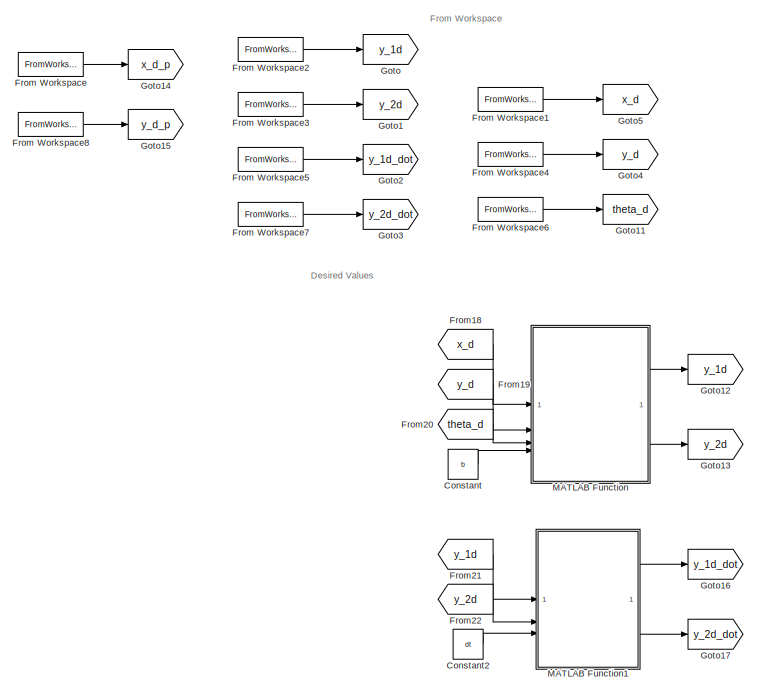
[diagram: root canvas - part 1/3, middle left region]
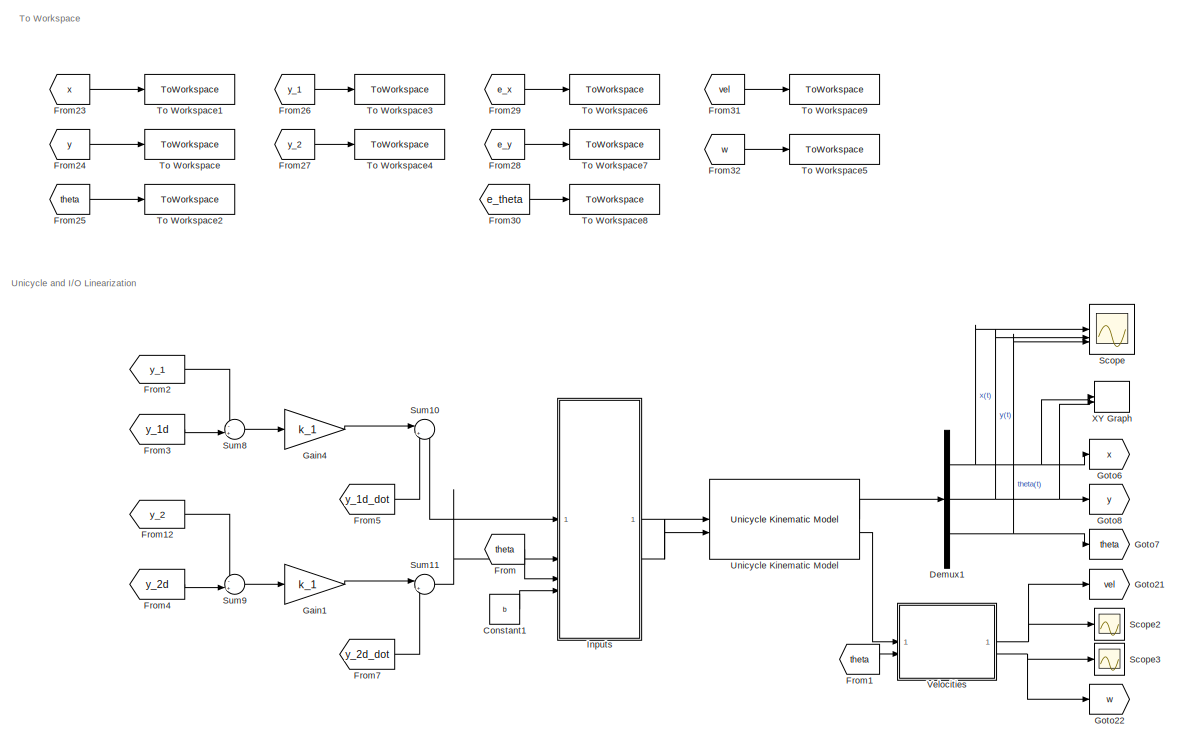
[diagram: root canvas - part 2/3, middle right region]
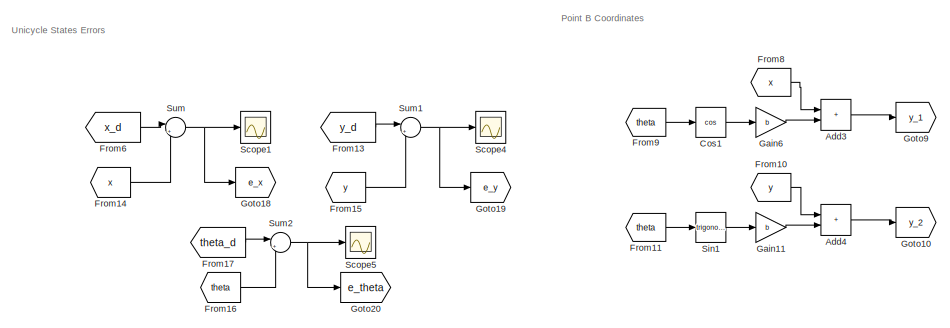
[diagram: root canvas - part 3/3, bottom center region]
MODEL slx_cfa96aeca774
KIND model
CONFIG AbsTol = auto
CONFIG EnableMultiTasking = off
CONFIG FixedStep = 0.001
CONFIG MaxStep = auto
CONFIG MinStep = auto
CONFIG RelTol = 1e-5
CONFIG SampleTimeConstraint = Unconstrained
CONFIG SolverName = ode23
CONFIG StartTime = 0.0
CONFIG StopTime = T+1
BLOCK [Sum] Add3
  IconShape = rectangular
BLOCK [Sum] Add4
  IconShape = rectangular
BLOCK [Constant] Constant
  Value = b
BLOCK [Constant] Constant1
  Value = b
BLOCK [Constant] Constant2
  Value = dt
BLOCK [Trigonometry] Cos1
  Operator = cos
BLOCK [Demux] Demux1
  Outputs = 3
BLOCK [From] From
  GotoTag = theta
BLOCK [FromWorkspace] From Workspace
  Commented = on
  VariableName = x_d_p
BLOCK [FromWorkspace] From Workspace1
  OutputAfterFinalValue = Holding final value
  VariableName = x_d
BLOCK [FromWorkspace] From Workspace2
  Commented = on
  OutputAfterFinalValue = Holding final value
  VariableName = y_1d
BLOCK [FromWorkspace] From Workspace3
  Commented = on
  OutputAfterFinalValue = Holding final value
  VariableName = y_2d
BLOCK [FromWorkspace] From Workspace4
  OutputAfterFinalValue = Holding final value
  VariableName = y_d
BLOCK [FromWorkspace] From Workspace5
  Commented = on
  OutputAfterFinalValue = Holding final value
  VariableName = y_1d_dot
BLOCK [FromWorkspace] From Workspace6
  OutputAfterFinalValue = Holding final value
  VariableName = theta_d
BLOCK [FromWorkspace] From Workspace7
  Commented = on
  OutputAfterFinalValue = Holding final value
  VariableName = y_2d_dot
BLOCK [FromWorkspace] From Workspace8
  Commented = on
  VariableName = y_d_p
BLOCK [From] From1
  GotoTag = theta
BLOCK [From] From10
  GotoTag = y
BLOCK [From] From11
  GotoTag = theta
BLOCK [From] From12
  GotoTag = y_2
BLOCK [From] From13
  GotoTag = y_d
BLOCK [From] From14
  GotoTag = x
BLOCK [From] From15
  GotoTag = y
BLOCK [From] From16
  GotoTag = theta
BLOCK [From] From17
  GotoTag = theta_d
BLOCK [From] From18
  GotoTag = x_d
BLOCK [From] From19
  GotoTag = y_d
BLOCK [From] From2
  GotoTag = y_1
BLOCK [From] From20
  GotoTag = theta_d
BLOCK [From] From21
  GotoTag = y_1d
BLOCK [From] From22
  GotoTag = y_2d
BLOCK [From] From23
  GotoTag = x
BLOCK [From] From24
  GotoTag = y
BLOCK [From] From25
  GotoTag = theta
BLOCK [From] From26
  GotoTag = y_1
BLOCK [From] From27
  GotoTag = y_2
BLOCK [From] From28
  GotoTag = e_y
BLOCK [From] From29
  GotoTag = e_x
BLOCK [From] From3
  GotoTag = y_1d
BLOCK [From] From30
  GotoTag = e_theta
BLOCK [From] From31
  GotoTag = vel
BLOCK [From] From32
  GotoTag = w
BLOCK [From] From4
  GotoTag = y_2d
BLOCK [From] From5
  GotoTag = y_1d_dot
BLOCK [From] From6
  GotoTag = x_d
BLOCK [From] From7
  GotoTag = y_2d_dot
BLOCK [From] From8
  GotoTag = x
BLOCK [From] From9
  GotoTag = theta
BLOCK [Gain] Gain1
  Gain = k_1
BLOCK [Gain] Gain11
  Gain = b
BLOCK [Gain] Gain4
  Gain = k_1
BLOCK [Gain] Gain6
  Gain = b
BLOCK [Goto] Goto
  Commented = on
  GotoTag = y_1d
BLOCK [Goto] Goto1
  Commented = on
  GotoTag = y_2d
BLOCK [Goto] Goto10
  GotoTag = y_2
BLOCK [Goto] Goto11
  GotoTag = theta_d
BLOCK [Goto] Goto12
  GotoTag = y_1d
BLOCK [Goto] Goto13
  GotoTag = y_2d
BLOCK [Goto] Goto14
  Commented = on
  GotoTag = x_d_p
BLOCK [Goto] Goto15
  Commented = on
  GotoTag = y_d_p
BLOCK [Goto] Goto16
  GotoTag = y_1d_dot
BLOCK [Goto] Goto17
  GotoTag = y_2d_dot
BLOCK [Goto] Goto18
  GotoTag = e_x
BLOCK [Goto] Goto19
  GotoTag = e_y
BLOCK [Goto] Goto2
  Commented = on
  GotoTag = y_1d_dot
BLOCK [Goto] Goto20
  GotoTag = e_theta
BLOCK [Goto] Goto21
  GotoTag = vel
BLOCK [Goto] Goto22
  GotoTag = w
BLOCK [Goto] Goto3
  Commented = on
  GotoTag = y_2d_dot
BLOCK [Goto] Goto4
  GotoTag = y_d
BLOCK [Goto] Goto5
  GotoTag = x_d
BLOCK [Goto] Goto6
  GotoTag = x
BLOCK [Goto] Goto7
  GotoTag = theta
BLOCK [Goto] Goto8
  GotoTag = y
BLOCK [Goto] Goto9
  GotoTag = y_1
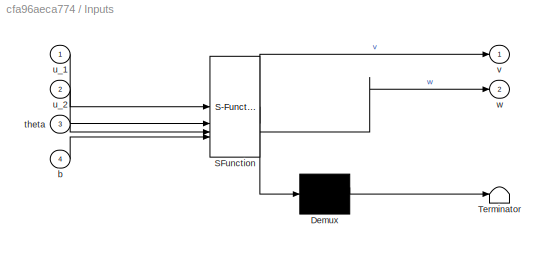
BLOCK [SubSystem] Inputs
  ErrorFcn = Stateflow.Translate.translate
  PermitHierarchicalResolution = ExplicitOnly
  SFBlockType = MATLAB Function
  TreatAsAtomicUnit = on
BLOCK [Demux] Inputs/ Demux 
  Outputs = 1
BLOCK [S-Function] Inputs/ SFunction 
  EnableBusSupport = on
  FunctionName = sf_sfun
  PortCounts = [4 3]
  SFcnIsStateOwnerBlock = off
  SFunctionDeploymentMode = off
  Tag = Stateflow S-Function 1
BLOCK [Terminator] Inputs/ Terminator 
BLOCK [Inport] Inputs/b
  Port = 4
BLOCK [Inport] Inputs/theta
  Port = 3
BLOCK [Inport] Inputs/u_1
BLOCK [Inport] Inputs/u_2
  Port = 2
BLOCK [Outport] Inputs/v
BLOCK [Outport] Inputs/w
  Port = 2
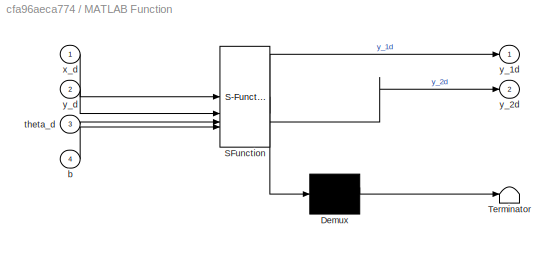
BLOCK [SubSystem] MATLAB Function
  ErrorFcn = Stateflow.Translate.translate
  PermitHierarchicalResolution = ExplicitOnly
  SFBlockType = MATLAB Function
  TreatAsAtomicUnit = on
BLOCK [Demux] MATLAB Function/ Demux 
  Outputs = 1
BLOCK [S-Function] MATLAB Function/ SFunction 
  EnableBusSupport = on
  FunctionName = sf_sfun
  PortCounts = [4 3]
  SFcnIsStateOwnerBlock = off
  SFunctionDeploymentMode = off
  Tag = Stateflow S-Function 3
BLOCK [Terminator] MATLAB Function/ Terminator 
BLOCK [Inport] MATLAB Function/b
  Port = 4
BLOCK [Inport] MATLAB Function/theta_d
  Port = 3
BLOCK [Inport] MATLAB Function/x_d
BLOCK [Outport] MATLAB Function/y_1d
BLOCK [Outport] MATLAB Function/y_2d
  Port = 2
BLOCK [Inport] MATLAB Function/y_d
  Port = 2
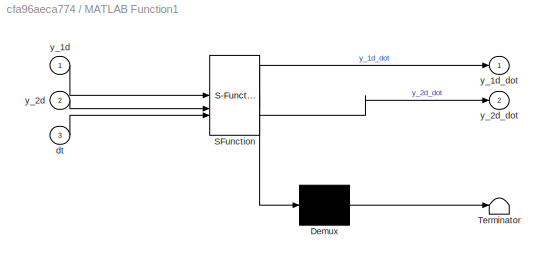
BLOCK [SubSystem] MATLAB Function1
  ErrorFcn = Stateflow.Translate.translate
  PermitHierarchicalResolution = ExplicitOnly
  SFBlockType = MATLAB Function
  TreatAsAtomicUnit = on
BLOCK [Demux] MATLAB Function1/ Demux 
  Outputs = 1
BLOCK [S-Function] MATLAB Function1/ SFunction 
  EnableBusSupport = on
  FunctionName = sf_sfun
  PortCounts = [3 3]
  SFcnIsStateOwnerBlock = off
  SFunctionDeploymentMode = off
  Tag = Stateflow S-Function 4
BLOCK [Terminator] MATLAB Function1/ Terminator 
BLOCK [Inport] MATLAB Function1/dt
  Port = 3
BLOCK [Inport] MATLAB Function1/y_1d
BLOCK [Outport] MATLAB Function1/y_1d_dot
BLOCK [Inport] MATLAB Function1/y_2d
  Port = 2
BLOCK [Outport] MATLAB Function1/y_2d_dot
  Port = 2
BLOCK [Scope] Scope
  Floating = off
  NumInputPorts = 3
  ScopeSpecificationString = Simulink.scopes.TimeScopeBlockCfg('CurrentConfiguration', extmgr.ConfigurationSet(extmgr.Configuration('Core','General UI',true),extmgr.Configuration('Core','Source UI',true),extmgr.Configuration('Sources','WiredSimulink',true,'DataLoggingVariableName','ScopeData1'),extmgr.Configuration('Visuals','Time Domain',true,'SerializedDisplays',{struct('MinYLimReal','-0.13096','MaxYLimReal','1.17862','YLab...<+1491ch>
BLOCK [Scope] Scope1
  Floating = off
  NumInputPorts = 1
  ScopeSpecificationString = Simulink.scopes.TimeScopeBlockCfg('CurrentConfiguration', extmgr.ConfigurationSet(extmgr.Configuration('Core','General UI',true),extmgr.Configuration('Core','Source UI',true),extmgr.Configuration('Sources','WiredSimulink',true,'DataLoggingVariableName','ScopeData1'),extmgr.Configuration('Visuals','Time Domain',true,'SerializedDisplays',{struct('MinYLimReal','-0.00055','MaxYLimReal','0.00491','YLab...<+1415ch>
BLOCK [Scope] Scope2
  Floating = off
  NumInputPorts = 1
  ScopeSpecificationString = Simulink.scopes.TimeScopeBlockCfg('CurrentConfiguration', extmgr.ConfigurationSet(extmgr.Configuration('Core','General UI',true),extmgr.Configuration('Core','Source UI',true),extmgr.Configuration('Sources','WiredSimulink',true,'DataLoggingVariableName','ScopeData2'),extmgr.Configuration('Visuals','Time Domain',true,'SerializedDisplays',{struct('MinYLimReal','-0.06275','MaxYLimReal','0.56244','YLab...<+1371ch>
BLOCK [Scope] Scope3
  Floating = off
  NumInputPorts = 1
  ScopeSpecificationString = Simulink.scopes.TimeScopeBlockCfg('CurrentConfiguration', extmgr.ConfigurationSet(extmgr.Configuration('Core','General UI',true),extmgr.Configuration('Core','Source UI',true),extmgr.Configuration('Sources','WiredSimulink',true,'DataLoggingVariableName','ScopeData3'),extmgr.Configuration('Visuals','Time Domain',true,'SerializedDisplays',{struct('MinYLimReal','-1.11996','MaxYLimReal','1.2838','YLabe...<+1396ch>
BLOCK [Scope] Scope4
  Floating = off
  NumInputPorts = 1
  ScopeSpecificationString = Simulink.scopes.TimeScopeBlockCfg('CurrentConfiguration', extmgr.ConfigurationSet(extmgr.Configuration('Core','General UI',true),extmgr.Configuration('Core','Source UI',true),extmgr.Configuration('Sources','WiredSimulink',true,'DataLoggingVariableName','ScopeData1'),extmgr.Configuration('Visuals','Time Domain',true,'SerializedDisplays',{struct('MinYLimReal','-0.0009','MaxYLimReal','0.00812','YLabe...<+1405ch>
BLOCK [Scope] Scope5
  Floating = off
  NumInputPorts = 1
  ScopeSpecificationString = Simulink.scopes.TimeScopeBlockCfg('CurrentConfiguration', extmgr.ConfigurationSet(extmgr.Configuration('Core','General UI',true),extmgr.Configuration('Core','Source UI',true),extmgr.Configuration('Sources','WiredSimulink',true,'DataLoggingVariableName','ScopeData5'),extmgr.Configuration('Visuals','Time Domain',true,'SerializedDisplays',{struct('MinYLimReal','-0.50996','MaxYLimReal','0.89151','YLab...<+1413ch>
BLOCK [Trigonometry] Sin1
BLOCK [Sum] Sum
  Inputs = |+-
BLOCK [Sum] Sum1
  Inputs = |+-
BLOCK [Sum] Sum10
  Inputs = |++
BLOCK [Sum] Sum11
  Inputs = |++
BLOCK [Sum] Sum2
  Inputs = |+-
BLOCK [Sum] Sum8
  Inputs = -+|
BLOCK [Sum] Sum9
  Inputs = -+|
BLOCK [ToWorkspace] To Workspace
  FixptAsFi = on
  MaxDataPoints = inf
  SampleTime = -1
  SaveFormat = Timeseries
  VariableName = y
BLOCK [ToWorkspace] To Workspace1
  FixptAsFi = on
  MaxDataPoints = inf
  SampleTime = -1
  SaveFormat = Timeseries
  VariableName = x
BLOCK [ToWorkspace] To Workspace2
  FixptAsFi = on
  MaxDataPoints = inf
  SampleTime = -1
  SaveFormat = Timeseries
  VariableName = theta
BLOCK [ToWorkspace] To Workspace3
  FixptAsFi = on
  MaxDataPoints = inf
  SampleTime = -1
  SaveFormat = Timeseries
  VariableName = y_1
BLOCK [ToWorkspace] To Workspace4
  FixptAsFi = on
  MaxDataPoints = inf
  SampleTime = -1
  SaveFormat = Timeseries
  VariableName = y_2
BLOCK [ToWorkspace] To Workspace5
  FixptAsFi = on
  MaxDataPoints = inf
  SampleTime = -1
  SaveFormat = Timeseries
  VariableName = w
BLOCK [ToWorkspace] To Workspace6
  FixptAsFi = on
  MaxDataPoints = inf
  SampleTime = -1
  SaveFormat = Timeseries
  VariableName = e_x
BLOCK [ToWorkspace] To Workspace7
  FixptAsFi = on
  MaxDataPoints = inf
  SampleTime = -1
  SaveFormat = Timeseries
  VariableName = e_y
BLOCK [ToWorkspace] To Workspace8
  FixptAsFi = on
  MaxDataPoints = inf
  SampleTime = -1
  SaveFormat = Timeseries
  VariableName = e_theta
BLOCK [ToWorkspace] To Workspace9
  FixptAsFi = on
  MaxDataPoints = inf
  SampleTime = -1
  SaveFormat = Timeseries
  VariableName = vel
BLOCK [Reference] Unicycle Kinematic Model  REF=robotmobilelib/Unicycle Kinematic Model
  SourceBlock = robotmobilelib/Unicycle Kinematic Model
  SourceType = Unicycle Kinematic Model
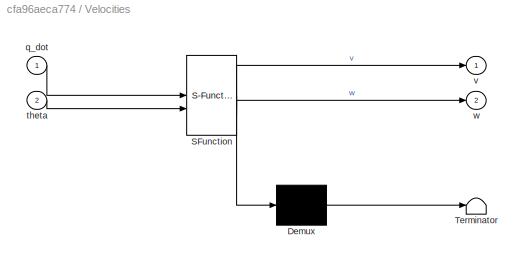
BLOCK [SubSystem] Velocities
  ErrorFcn = Stateflow.Translate.translate
  PermitHierarchicalResolution = ExplicitOnly
  SFBlockType = MATLAB Function
  TreatAsAtomicUnit = on
BLOCK [Demux] Velocities/ Demux 
  Outputs = 1
BLOCK [S-Function] Velocities/ SFunction 
  EnableBusSupport = on
  FunctionName = sf_sfun
  PortCounts = [2 3]
  SFcnIsStateOwnerBlock = off
  SFunctionDeploymentMode = off
  Tag = Stateflow S-Function 2
BLOCK [Terminator] Velocities/ Terminator 
BLOCK [Inport] Velocities/q_dot
BLOCK [Inport] Velocities/theta
  Port = 2
BLOCK [Outport] Velocities/v
BLOCK [Outport] Velocities/w
  Port = 2
BLOCK [Record] XY Graph
  CompatibilityTag = XY
  FileSettingsInternal = {"entries":[{"content":{"excelSettings":{"content":{},"type":"Streamout.ExcelSettings"}},"type":"Streamout.FileSettingStorage","uuid":""}],"packageUris":["http:\/\/schema.mathworks.com\/mf0\/streamout_blocks\/R2020a"],"version":"1.0"}
  Layout = [1 1]
  SignalsInternal = {"entries":[{"content":{"signals":[{"content":{"blockPath":[],"dimensions":[1],"domain":"","lineColor":"#a2142f","plots":[1],"port":1,"signalID":8,"signalName":"x(t)"},"type":"RecordBlkView.Signal","uuid":""},{"content":{"blockPath":[],"dimensions":[1],"domain":"","lineColor":"#139fff","plots":[1],"port":2,"signalID":11,"signalName":"y(t)"},"type":"RecordBlkView.Signal","uuid":""}]},"type":"Record...<+129ch>
  VisualizationBindings = {"xyplotplugin":{"info":[{"series":[{"bindingParametersList":[{"parameter":"X-Axis","signalID":8,"signalName":"x(t)"},{"parameter":"Y-Axis","signalID":11,"signalName":"y(t)"}],"seriesID":48537}],"subplotID":1}]}}
ANNOTATION (root): Desired Values
ANNOTATION (root): From Workspace
ANNOTATION (root): Point B Coordinates
ANNOTATION (root): To Workspace
ANNOTATION (root): Unicycle States Errors
ANNOTATION (root): Unicycle and I/O Linearization
LINE Add3:1 -> Goto9:1
LINE Add4:1 -> Goto10:1
LINE Constant1:1 -> Inputs:4
LINE Constant2:1 -> MATLAB Function1:3
LINE Constant:1 -> MATLAB Function:4
LINE Cos1:1 -> Gain6:1
NET Demux1:1 -> Goto6:1, Scope:1, XY Graph:1
NET Demux1:2 -> Goto8:1, Scope:2, XY Graph:2
NET Demux1:3 -> Goto7:1, Scope:3
LINE From Workspace1:1 -> Goto5:1
LINE From Workspace2:1 -> Goto:1
LINE From Workspace3:1 -> Goto1:1
LINE From Workspace4:1 -> Goto4:1
LINE From Workspace5:1 -> Goto2:1
LINE From Workspace6:1 -> Goto11:1
LINE From Workspace7:1 -> Goto3:1
LINE From Workspace8:1 -> Goto15:1
LINE From Workspace:1 -> Goto14:1
LINE From10:1 -> Add4:1
LINE From11:1 -> Sin1:1
LINE From12:1 -> Sum9:1
LINE From13:1 -> Sum1:1
LINE From14:1 -> Sum:2
LINE From15:1 -> Sum1:2
LINE From16:1 -> Sum2:2
LINE From17:1 -> Sum2:1
LINE From18:1 -> MATLAB Function:1
LINE From19:1 -> MATLAB Function:2
LINE From1:1 -> Velocities:2
LINE From20:1 -> MATLAB Function:3
LINE From21:1 -> MATLAB Function1:1
LINE From22:1 -> MATLAB Function1:2
LINE From23:1 -> To Workspace1:1
LINE From24:1 -> To Workspace:1
LINE From25:1 -> To Workspace2:1
LINE From26:1 -> To Workspace3:1
LINE From27:1 -> To Workspace4:1
LINE From28:1 -> To Workspace7:1
LINE From29:1 -> To Workspace6:1
LINE From2:1 -> Sum8:1
LINE From30:1 -> To Workspace8:1
LINE From31:1 -> To Workspace9:1
LINE From32:1 -> To Workspace5:1
LINE From3:1 -> Sum8:2
LINE From4:1 -> Sum9:2
LINE From5:1 -> Sum10:2
LINE From6:1 -> Sum:1
LINE From7:1 -> Sum11:2
LINE From8:1 -> Add3:1
LINE From9:1 -> Cos1:1
LINE From:1 -> Inputs:3
LINE Gain11:1 -> Add4:2
LINE Gain1:1 -> Sum11:1
LINE Gain4:1 -> Sum10:1
LINE Gain6:1 -> Add3:2
LINE Inputs:1 -> Unicycle Kinematic Model:1
LINE Inputs:2 -> Unicycle Kinematic Model:2
LINE MATLAB Function1:1 -> Goto16:1
LINE MATLAB Function1:2 -> Goto17:1
LINE MATLAB Function:1 -> Goto12:1
LINE MATLAB Function:2 -> Goto13:1
LINE Sin1:1 -> Gain11:1
LINE Sum10:1 -> Inputs:1
LINE Sum11:1 -> Inputs:2
NET Sum1:1 -> Goto19:1, Scope4:1
NET Sum2:1 -> Goto20:1, Scope5:1
LINE Sum8:1 -> Gain4:1
LINE Sum9:1 -> Gain1:1
NET Sum:1 -> Goto18:1, Scope1:1
LINE Unicycle Kinematic Model:1 -> Demux1:1
LINE Unicycle Kinematic Model:2 -> Velocities:1
NET Velocities:1 -> Goto21:1, Scope2:1
NET Velocities:2 -> Goto22:1, Scope3:1
note: NET lines group one-source signal fan-out (src -> all destinations, sorted); 1:1 wires keep LINE
CHART Inputs states=1 transitions=1
  STATE_LABEL 'eML_blk_kernel()'
  STATE_LABEL 'SCRIPT:\nfunction [v,w] = inputs(u_1, u_2, theta, b)\n\nT = [cos(theta) -b*sin(theta);\n     sin(theta) b*cos(theta)];\n\nTinv = inv(T);\n\n% v = Tinv(1,1)*u_1+Tinv(1,2)*u_2;\n% w = Tinv(2,1)*u_1+Tinv(2,2)*u_2;\n\nvel = Tinv*[u_1;u_2];\n\nv = vel(1);\nw = vel(2);\n\n\n'
CHART Velocities states=1 transitions=1
  STATE_LABEL 'eML_blk_kernel()'
  STATE_LABEL 'SCRIPT:\nfunction [v,w] = velocities(q_dot, theta)\n\nv= q_dot(1)/cos(theta);\nw= q_dot(3);\n\n\n\n\n'
CHART MATLAB Function states=1 transitions=1
  STATE_LABEL 'eML_blk_kernel()'
  STATE_LABEL 'SCRIPT:\nfunction [y_1d,y_2d] = y_des(x_d, y_d, theta_d, b)\n\ny_1d = x_d + b.*cos(theta_d);\ny_2d = y_d + b.*sin(theta_d);'
CHART MATLAB Function1 states=1 transitions=1
  STATE_LABEL 'eML_blk_kernel()'
  STATE_LABEL 'SCRIPT:\nfunction [y_1d_dot, y_2d_dot]  = y_dot_des(y_1d, y_2d, dt)\n\ny_1d_dot = gradient(y_1d, dt);\ny_2d_dot = gradient(y_2d, dt);'
CHART  states=0 transitions=0
CHART  states=0 transitions=0
CHART  states=0 transitions=0
CHART  states=0 transitions=0
